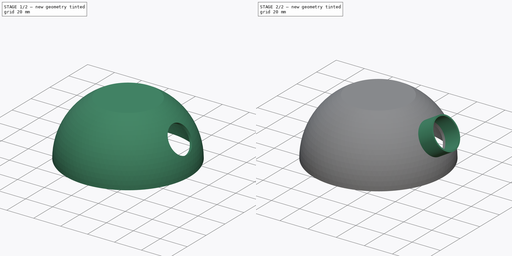
[diagram: build sequence overview — one tinted view per stage of 2, left to right]
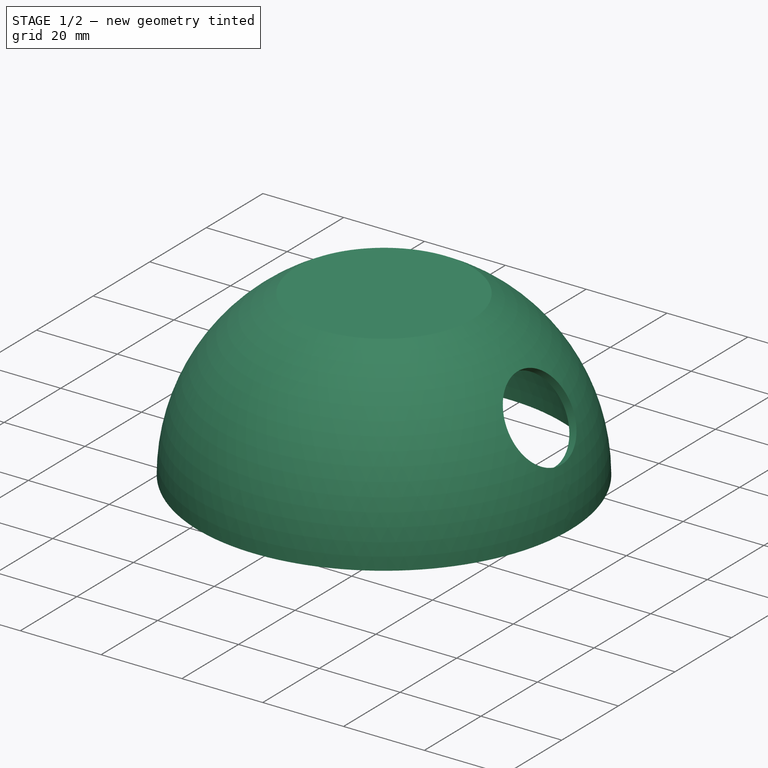
[diagram: stage 1 of 2 — iso view after this stage's code; geometry added in this stage tinted green]
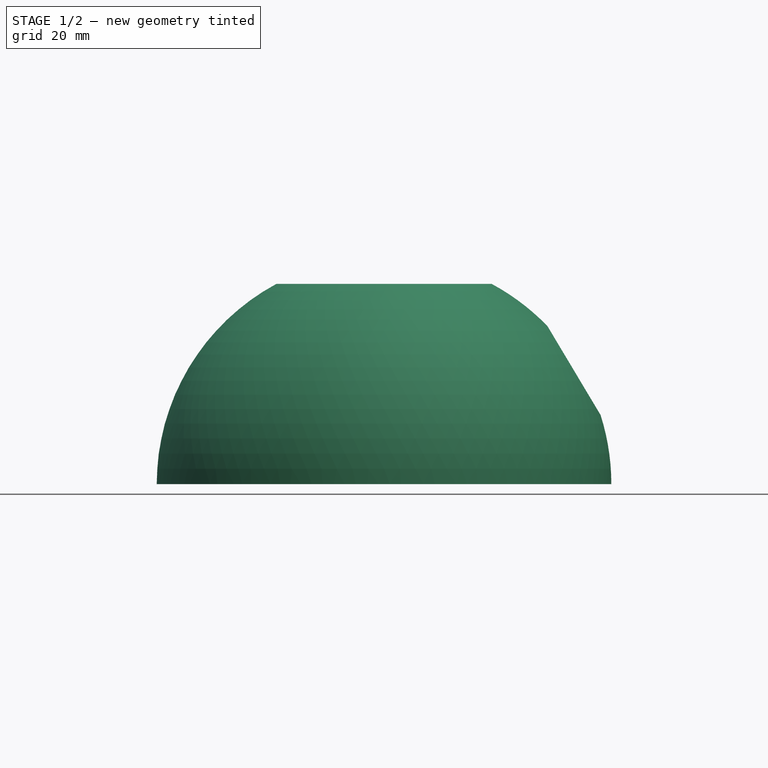
[diagram: stage 1 of 2 — front view after this stage's code; geometry added in this stage tinted green]
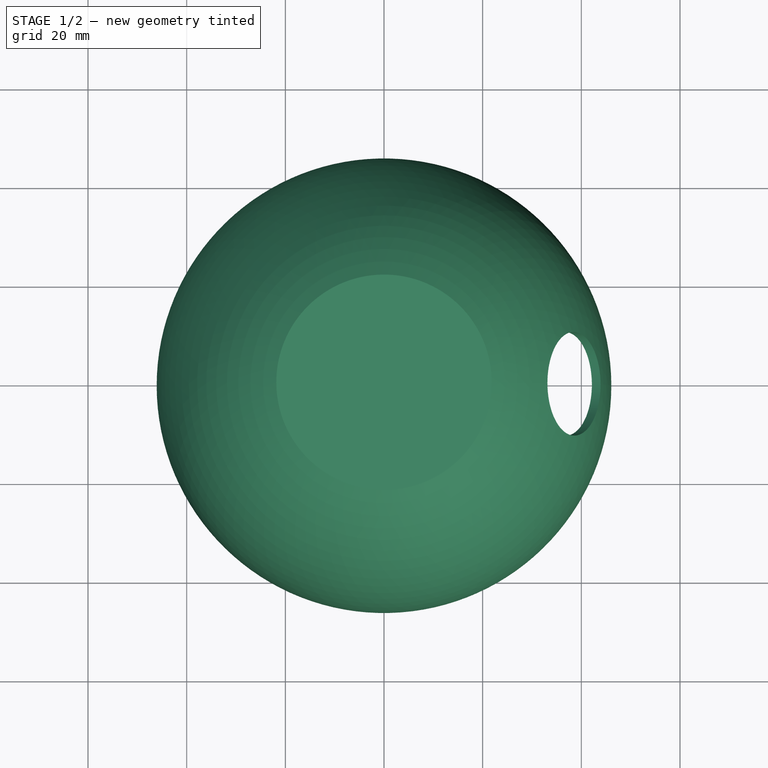
[diagram: stage 1 of 2 — top view after this stage's code; geometry added in this stage tinted green]
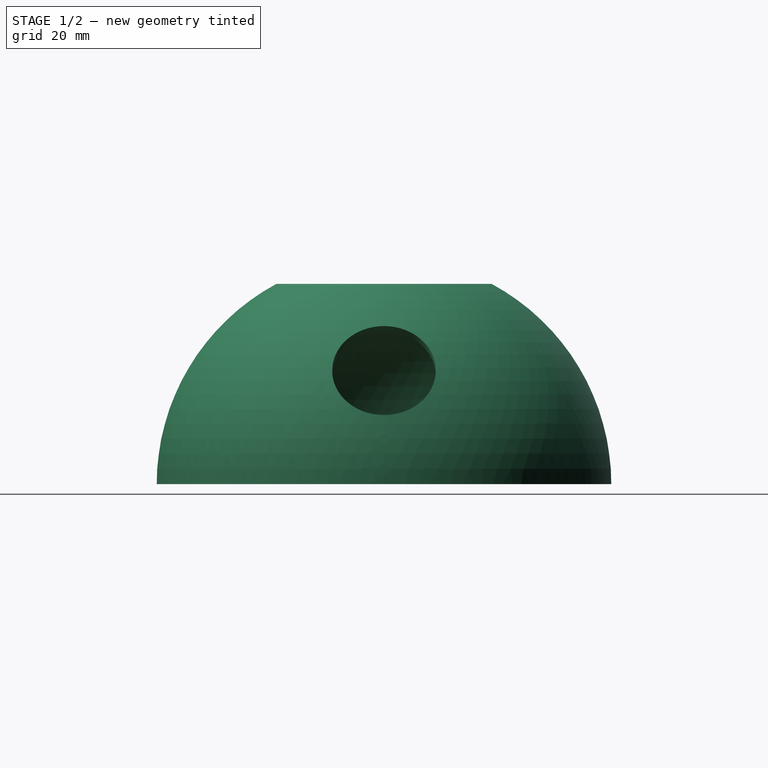
[diagram: stage 1 of 2 — right view after this stage's code; geometry added in this stage tinted green]
FCSTD DOCUMENT  (FreeCAD 0.19R24291 (Git))
Label: Unnamed2
License: All rights reserved
LicenseURL: http://en.wikipedia.org/wiki/All_rights_reserved
objects: Sketcher::SketchObject×3, PartDesign::Point×2, PartDesign::Pad×2, PartDesign::Revolution×1, PartDesign::Line×1, PartDesign::Plane×1, PartDesign::Pocket×1, PartDesign::Body×1
note: 16 computed .brp shape members not serialized (recipe doc carries the construction recipe); baked Part::Feature solids carry a one-line shape summary decoded from their .brp

FEATURE [Sketcher::SketchObject] Sketch
  FullyConstrained = true
  MapMode = 5
  Placement = pos=(0,0,0) rot=(1,0,0;1.5708rad)
  Support = -> [XZ_Plane]
  expr: Constraints[5] = 40.58 - 2
  sketch-geometry (6):
    g0: ArcOfCircle CenterX=0 CenterY=0 CenterZ=0 NormalX=0 NormalY=0 NormalZ=1 AngleXU=0 Radius=44.08 StartAngle=0 EndAngle=1.0659
    g1: LineSegment StartX=21.3221 StartY=38.58 StartZ=0 EndX=0 EndY=38.58 EndZ=0
    g2: LineSegment StartX=44.08 StartY=0 StartZ=0 EndX=46.08 EndY=0 EndZ=0
    g3: ArcOfCircle CenterX=0 CenterY=0 CenterZ=0 NormalX=0 NormalY=0 NormalZ=1 AngleXU=0 Radius=46.08 StartAngle=0 EndAngle=1.07722
    g4: LineSegment StartX=21.8319 StartY=40.58 StartZ=0 EndX=0 EndY=40.58 EndZ=0
    g5: LineSegment StartX=0 StartY=38.58 StartZ=0 EndX=0 EndY=40.58 EndZ=0
  constraints (18):
    c: Coincident(g0,g-1)
    c: PointOnObject(g0,g-1)
    c: Diameter(g0) = 88.16
    c: Coincident(g1,g0)
    c: Horizontal(g1)
    c: Distance(g0,g-1) = 38.58
    c: PointOnObject(g1,g-2)
    c: Coincident(g2,g0)
    c: PointOnObject(g2,g-1)
    c: Coincident(g3,g0)
    c: Coincident(g3,g2)
    c: Coincident(g4,g3)
    c: Horizontal(g4)
    c: PointOnObject(g4,g-2)
    c: Distance(g2) = 2
    c: Coincident(g5,g1)
    c: Coincident(g5,g4)
    c: Distance(g5) = 2
FEATURE [PartDesign::Revolution] Revolution
  Angle = 360
  Axis = (0,2e-16,1)
  Base = (0,0,0)
  Placement = pos=(0,0,0) rot=(1,0,0;1.5708rad)
  Profile = -> Sketch
  ReferenceAxis = -> Sketch [V_Axis]
  Reversed = true
FEATURE [PartDesign::Point] DatumPoint
  AttacherType = Attacher::AttachEnginePoint
  MapMode = 37
  Placement = pos=(37.6712,2.75e-14,22.51) rot=(0,0,1;0rad)
  Support = -> [Revolution]
FEATURE [PartDesign::Line] DatumLine
  AttacherType = Attacher::AttachEngineLine
  AttachmentOffset = pos=(0,0,0) rot=(1,0,0;1.5708rad)
  Length = 20
  MapMode = 29
  Placement = pos=(33.9559,2.48e-14,20.29) rot=(0.65626,0.65626,-0.372353;3.85449rad)
  ResizeMode = 0
  Support = -> [Revolution]
FEATURE [PartDesign::Point] DatumPoint001
  AttacherType = Attacher::AttachEnginePoint
  MapMode = 40
  Placement = pos=(39.5562,1.5e-14,23.6364) rot=(0,0,1;0rad)
  Support = -> [DatumLine,Revolution]
FEATURE [PartDesign::Plane] DatumPlane
  Length = 111.967
  MapMode = 7
  Placement = pos=(39.5562,1.5e-14,23.6364) rot=(0.442535,0.442535,0.779952;1.8168rad)
  ResizeMode = 0
  Support = -> [DatumLine,DatumPoint001]
  Width = 127.434
FEATURE [Sketcher::SketchObject] Sketch001
  FullyConstrained = true
  MapMode = 5
  Placement = pos=(39.5562,1.5e-14,23.6364) rot=(0.442535,0.442535,0.779952;1.8168rad)
  Support = -> [DatumPlane]
  sketch-geometry (1):
    g0: Circle CenterX=0 CenterY=0 CenterZ=0 NormalX=0 NormalY=0 NormalZ=1 AngleXU=0 Radius=10.5
  constraints (2):
    c: Coincident(g0,g-1)
    c: Diameter(g0) = 21
FEATURE [PartDesign::Pocket] Pocket
  BaseFeature = -> Revolution
  Length = 5
  Length2 = 100
  Placement = pos=(0,0,0) rot=(1,0,0;1.5708rad)
  Profile = -> Sketch001
  Type = 0
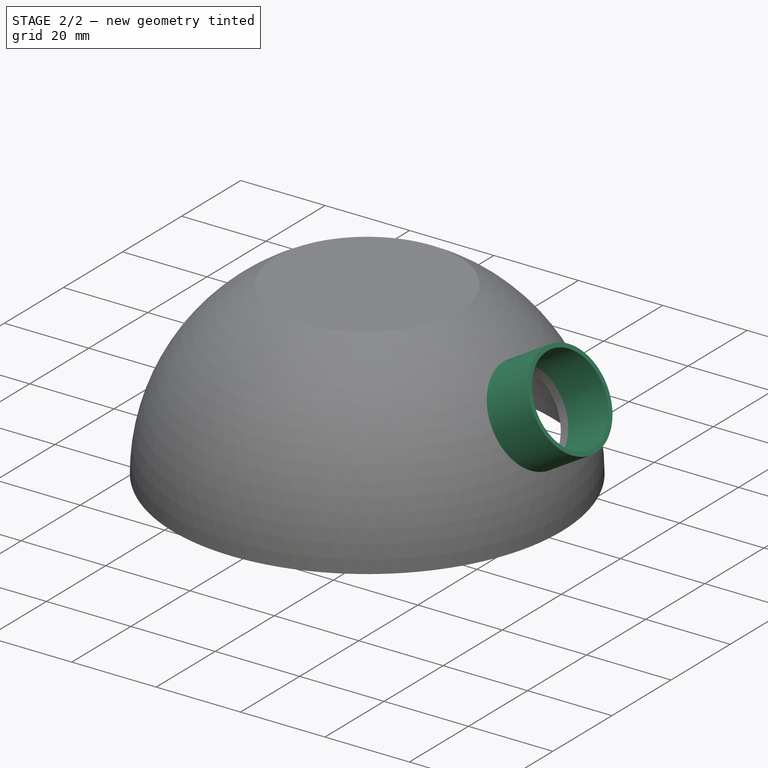
[diagram: stage 2 of 2 — iso view after this stage's code; geometry added in this stage tinted green]
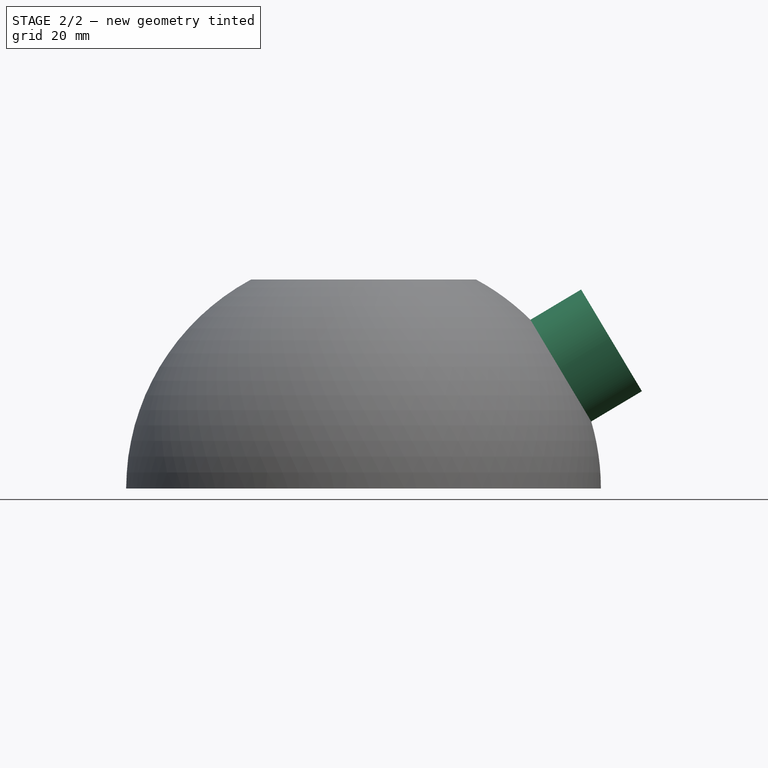
[diagram: stage 2 of 2 — front view after this stage's code; geometry added in this stage tinted green]
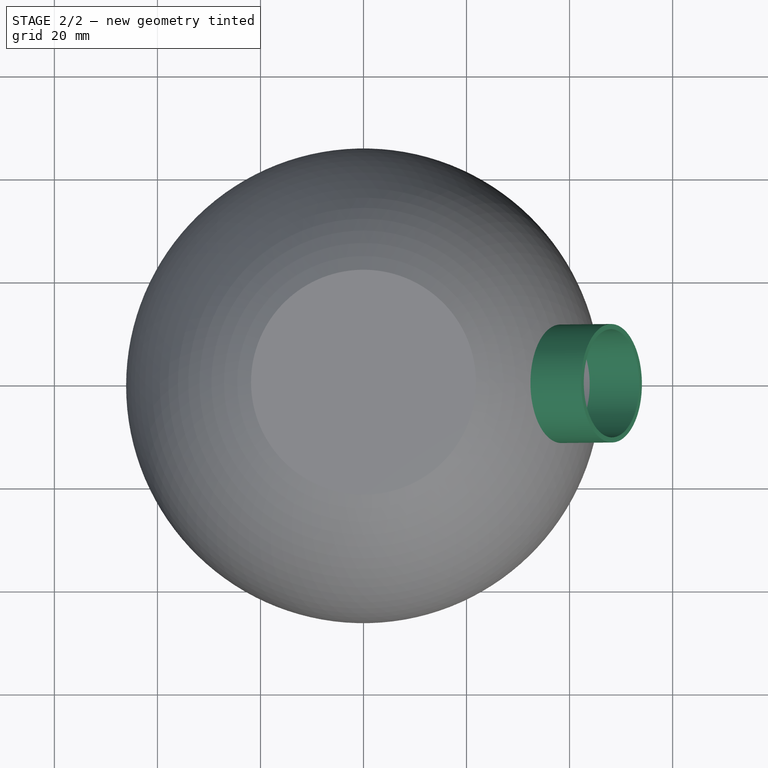
[diagram: stage 2 of 2 — top view after this stage's code; geometry added in this stage tinted green]
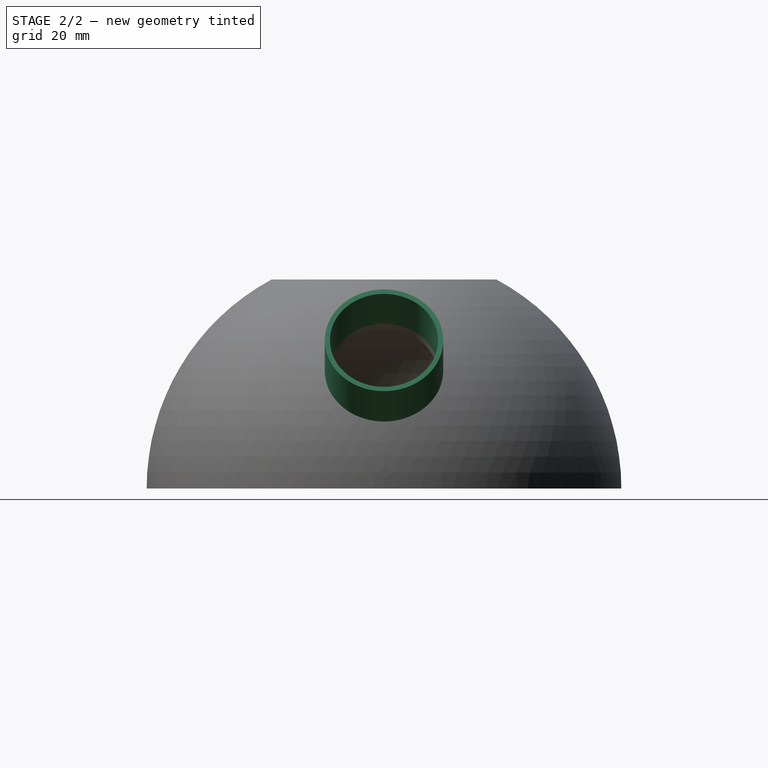
[diagram: stage 2 of 2 — right view after this stage's code; geometry added in this stage tinted green]
FEATURE [Sketcher::SketchObject] Sketch002
  FullyConstrained = true
  MapMode = 5
  Placement = pos=(39.5562,1.5e-14,23.6364) rot=(0.442535,0.442535,0.779952;1.8168rad)
  Support = -> [DatumPlane]
  expr: Constraints[1] = Sketch001.Constraints[1]
  sketch-geometry (2):
    g0: Circle CenterX=0 CenterY=0 CenterZ=0 NormalX=0 NormalY=0 NormalZ=1 AngleXU=0 Radius=10.5
    g1: Circle CenterX=0 CenterY=0 CenterZ=0 NormalX=0 NormalY=0 NormalZ=1 AngleXU=0 Radius=11.5
  constraints (4):
    c: Coincident(g0,g-1)
    c: Diameter(g0) = 21
    c: Coincident(g1,g0)
    c: Diameter(g1) = 23
FEATURE [PartDesign::Pad] Pad
  BaseFeature = -> Pocket
  Direction = (1,1,1)
  Length = 10
  Length2 = 100
  Placement = pos=(0,0,0) rot=(1,0,0;1.5708rad)
  Profile = -> Sketch002
  Reversed = true
  Type = 3
  UpToFace = -> Pocket [Face5]
FEATURE [PartDesign::Pad] Pad001
  BaseFeature = -> Pad
  Direction = (1,1,1)
  Length = 10
  Length2 = 100
  Placement = pos=(0,0,0) rot=(1,0,0;1.5708rad)
  Profile = -> Sketch002
  Type = 0
FEATURE [PartDesign::Body] Body
  Group = -> [Sketch,Revolution,DatumPoint,DatumLine,DatumPlane,DatumPoint001,Sketch001,Pocket,Sketch002,Pad,Pad001]
  Origin = -> Origin
  Tip = -> Pad001
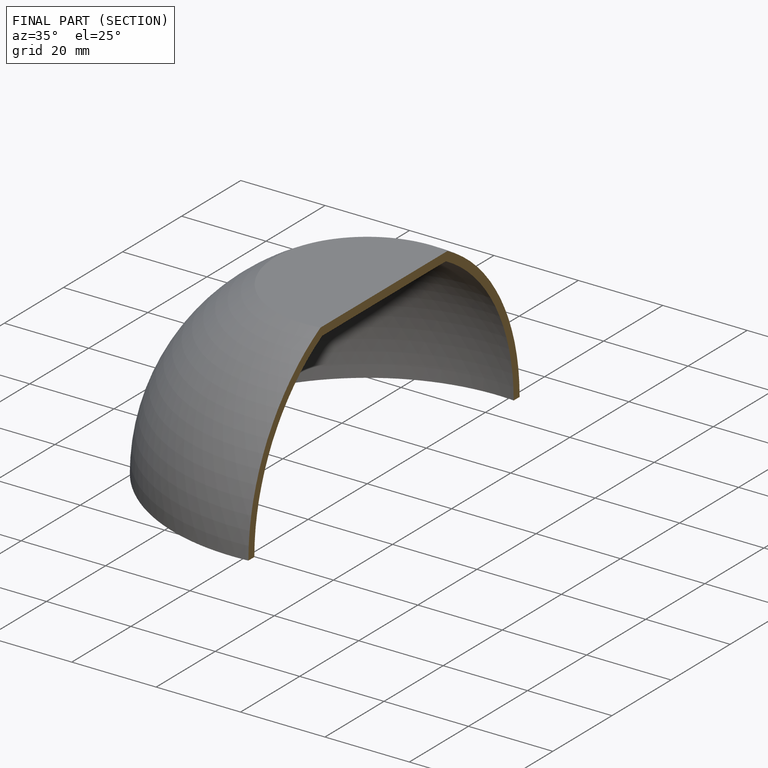
[diagram: finished part — half-section view (interior)]
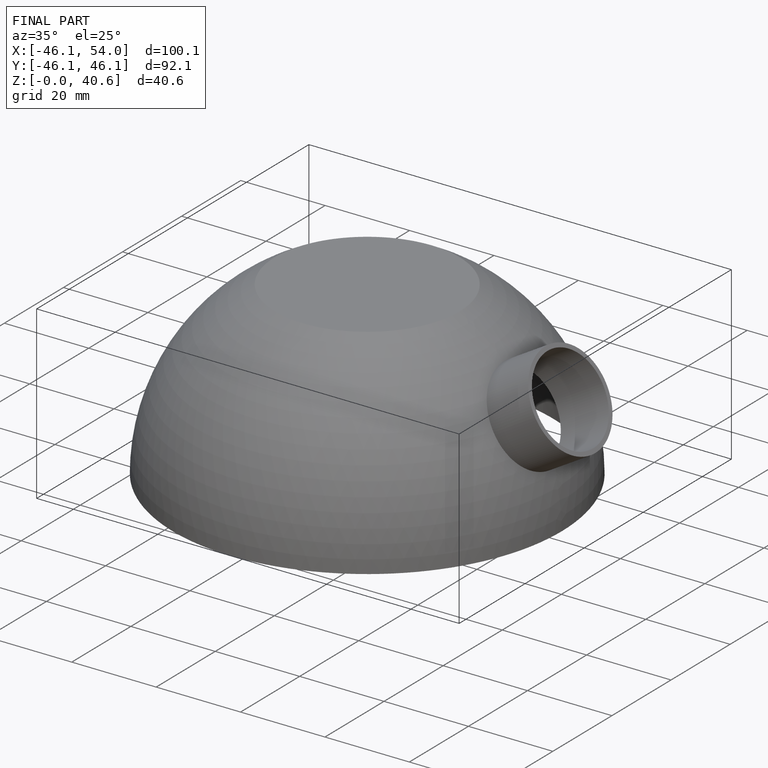
[diagram: finished part — iso view with bounding-box wireframe]
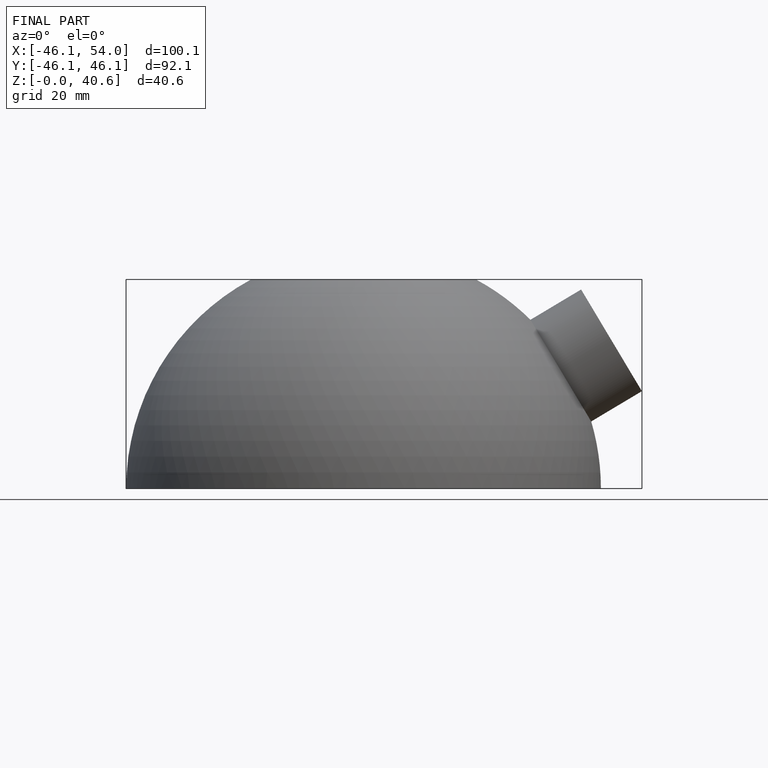
[diagram: finished part — front view with bounding-box wireframe]
